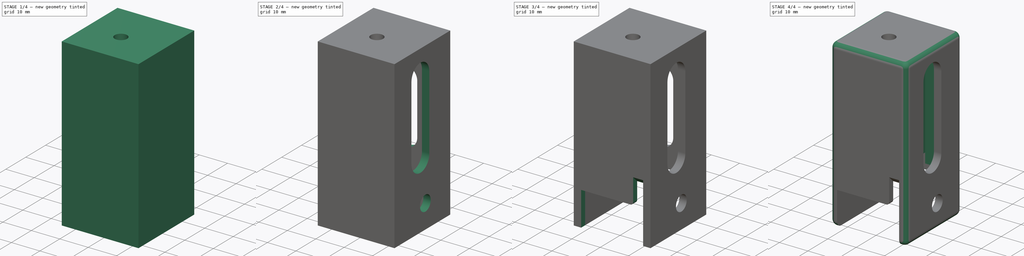
[diagram: build sequence overview — one tinted view per stage of 4, left to right]
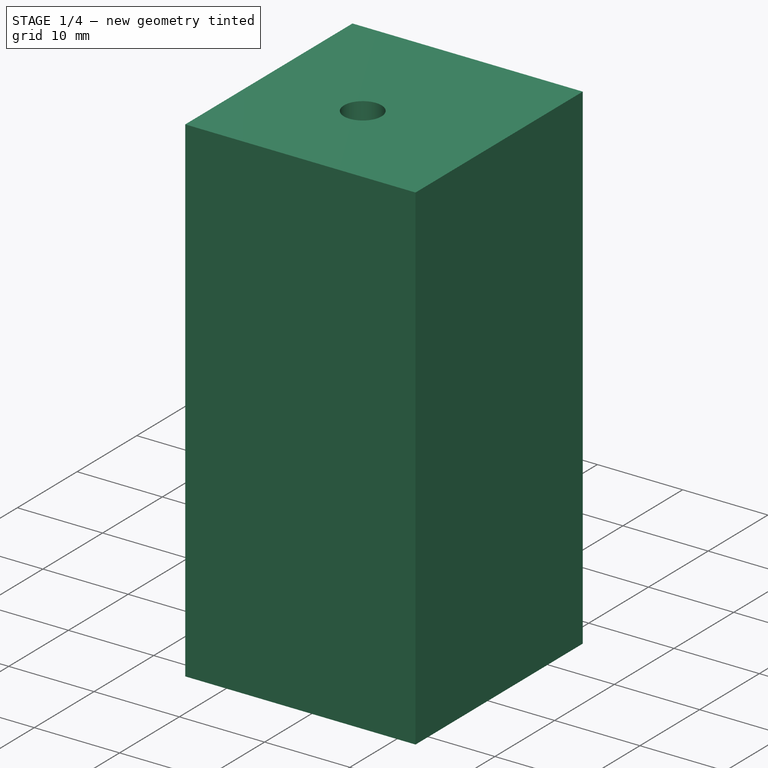
[diagram: stage 1 of 4 — iso view after this stage's code; geometry added in this stage tinted green]
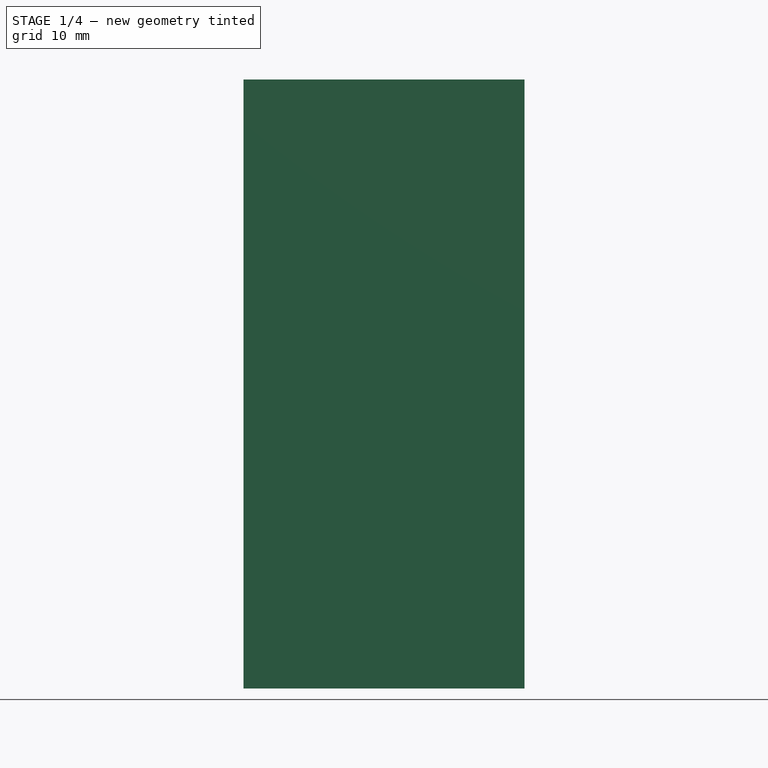
[diagram: stage 1 of 4 — front view after this stage's code; geometry added in this stage tinted green]
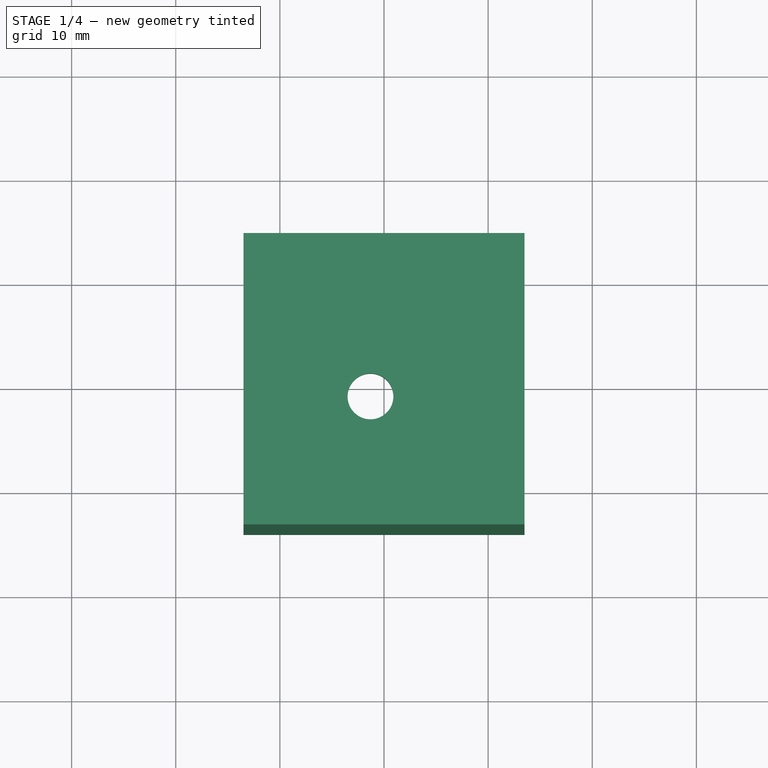
[diagram: stage 1 of 4 — top view after this stage's code; geometry added in this stage tinted green]
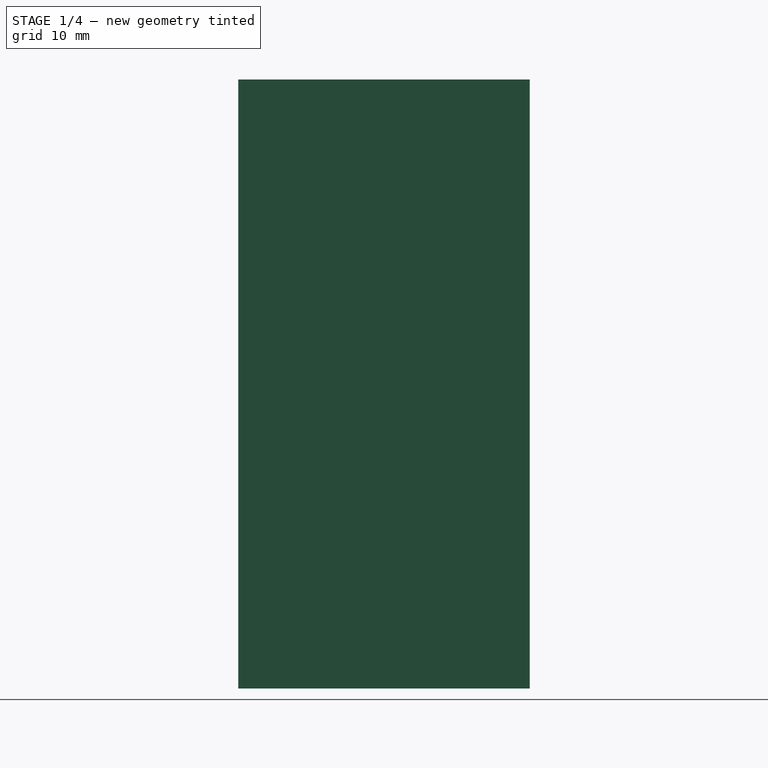
[diagram: stage 1 of 4 — right view after this stage's code; geometry added in this stage tinted green]
FCSTD DOCUMENT  (FreeCAD 0.19R24267 +148 (Git))
Label: belt_tensioner
License: All rights reserved
LicenseURL: http://en.wikipedia.org/wiki/All_rights_reserved
objects: Sketcher::SketchObject×8, PartDesign::Pocket×6, PartDesign::Fillet×3, PartDesign::Pad×2, PartDesign::Chamfer×1, PartDesign::Body×1
note: 33 computed .brp shape members not serialized (recipe doc carries the construction recipe); baked Part::Feature solids carry a one-line shape summary decoded from their .brp

FEATURE [Sketcher::SketchObject] Sketch
  FullyConstrained = true
  MapMode = 5
  Support = -> [XY_Plane]
  sketch-geometry (4):
    g0: LineSegment StartX=-13.5 StartY=14 StartZ=0 EndX=13.5 EndY=14 EndZ=0
    g1: LineSegment StartX=13.5 StartY=14 StartZ=0 EndX=13.5 EndY=-14 EndZ=0
    g2: LineSegment StartX=13.5 StartY=-14 StartZ=0 EndX=-13.5 EndY=-14 EndZ=0
    g3: LineSegment StartX=-13.5 StartY=-14 StartZ=0 EndX=-13.5 EndY=14 EndZ=0
  constraints (12):
    c: Coincident(g0,g1)
    c: Coincident(g1,g2)
    c: Coincident(g2,g3)
    c: Coincident(g3,g0)
    c: Horizontal(g0)
    c: Horizontal(g2)
    c: Vertical(g1)
    c: Vertical(g3)
    c: DistanceY(g1,g1) = 28
    c: DistanceX(g0,g0) = 27
    c: DistanceY(g-1,g0) = 14
    c: DistanceX(g0,g-1) = 13.5
FEATURE [PartDesign::Pad] Pad
  Direction = (1,1,1)
  Length = 58.5
  Length2 = 100
  Profile = -> Sketch
  Type = 0
FEATURE [Sketcher::SketchObject] Sketch001
  ExternalGeometry = -> [Pad]
  FullyConstrained = true
  MapMode = 5
  Placement = pos=(0,0,58.5) rot=(0,0,1;0rad)
  Support = -> [Pad]
  sketch-geometry (1):
    g0: Circle CenterX=-1.3 CenterY=-1.7 CenterZ=0 NormalX=0 NormalY=0 NormalZ=1 AngleXU=0 Radius=2.2
  constraints (3):
    c: Radius(g0) = 2.2
    c: DistanceX(g-3,g0) = 12.2
    c: DistanceY(g-3,g0) = 12.3
FEATURE [PartDesign::Pocket] Pocket
  BaseFeature = -> Pad
  Length = 0
  Length2 = 100
  Profile = -> Sketch001
  Type = 3
  UpToFace = -> Pad [Face5]
FEATURE [Sketcher::SketchObject] Sketch002
  ExternalGeometry = -> [Sketch]
  FullyConstrained = true
  MapMode = 5
  Placement = pos=(0,0,0) rot=(1,0,0;3.14159rad)
  Support = -> [Pocket]
  sketch-geometry (4):
    g0: LineSegment StartX=-10.9 StartY=12 StartZ=0 EndX=10.9 EndY=12 EndZ=0
    g1: LineSegment StartX=10.9 StartY=12 StartZ=0 EndX=10.9 EndY=-12 EndZ=0
    g2: LineSegment StartX=10.9 StartY=-12 StartZ=0 EndX=-10.9 EndY=-12 EndZ=0
    g3: LineSegment StartX=-10.9 StartY=-12 StartZ=0 EndX=-10.9 EndY=12 EndZ=0
  constraints (12):
    c: Coincident(g0,g1)
    c: Coincident(g1,g2)
    c: Coincident(g2,g3)
    c: Coincident(g3,g0)
    c: Horizontal(g0)
    c: Horizontal(g2)
    c: Vertical(g1)
    c: Vertical(g3)
    c: DistanceY(g0,g-3) = 2
    c: DistanceX(g-3,g0) = 2.6
    c: DistanceX(g0,g-4) = 2.6
    c: DistanceY(g-6,g2) = 2
FEATURE [PartDesign::Pocket] Pocket001
  BaseFeature = -> Pocket
  Length = 56
  Length2 = 100
  Profile = -> Sketch002
  Type = 0
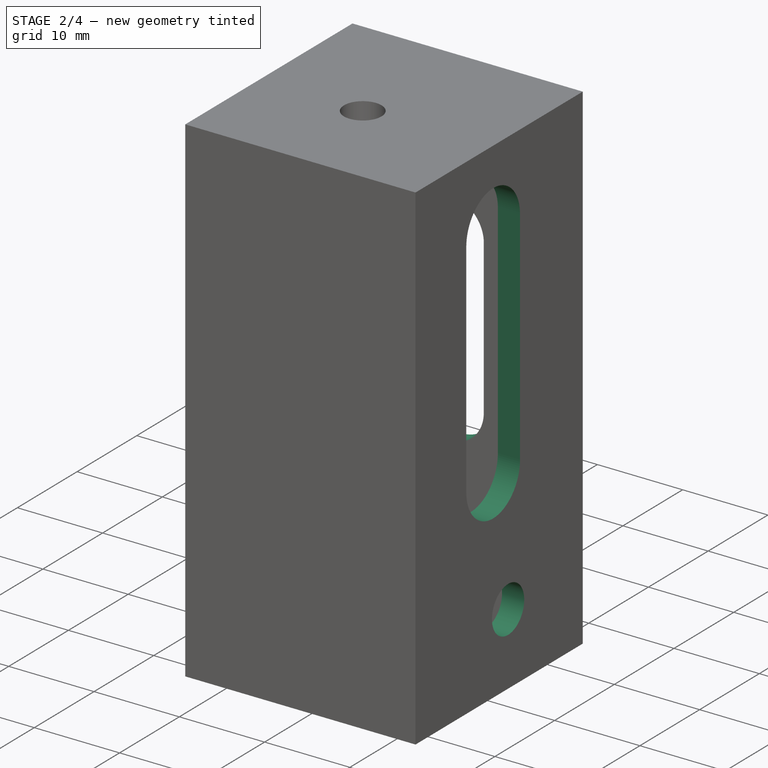
[diagram: stage 2 of 4 — iso view after this stage's code; geometry added in this stage tinted green]
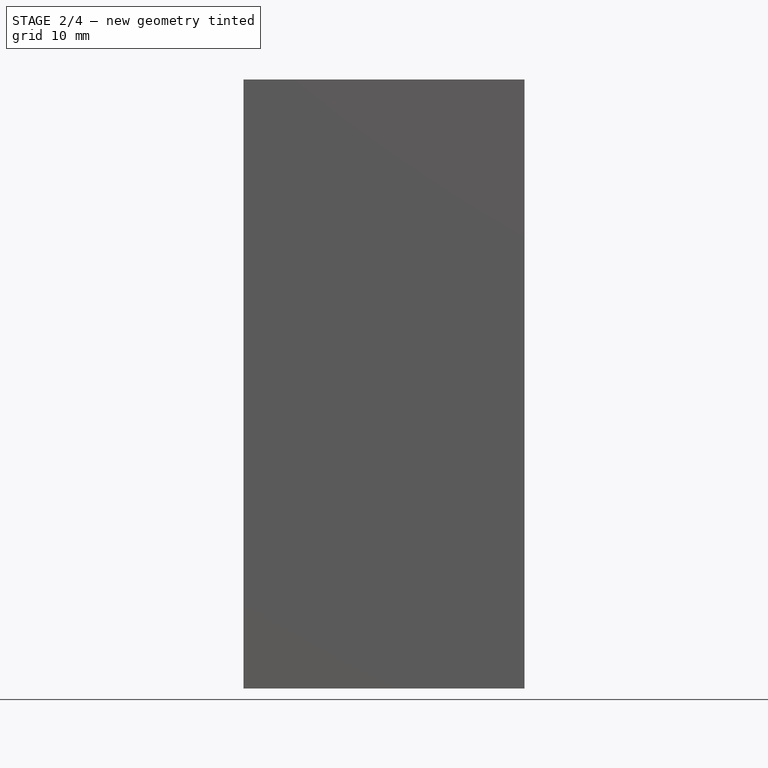
[diagram: stage 2 of 4 — front view after this stage's code; geometry added in this stage tinted green]
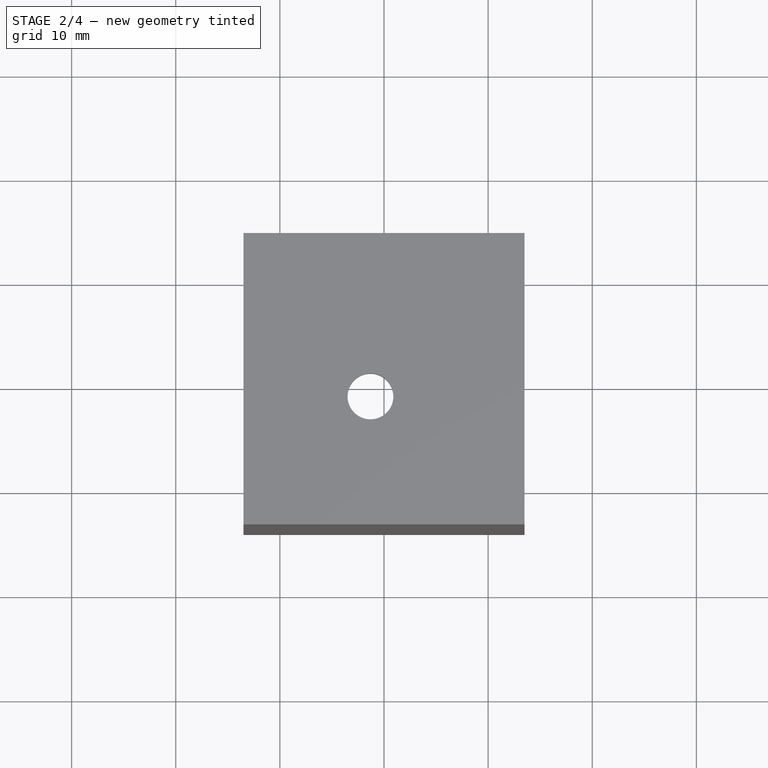
[diagram: stage 2 of 4 — top view after this stage's code; geometry added in this stage tinted green]
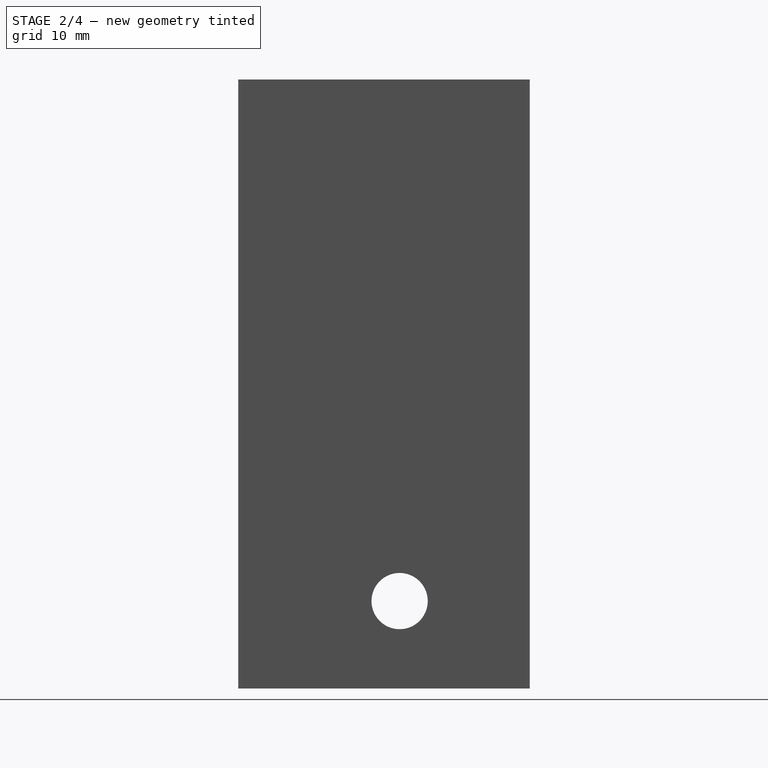
[diagram: stage 2 of 4 — right view after this stage's code; geometry added in this stage tinted green]
FEATURE [Sketcher::SketchObject] Sketch003
  ExternalGeometry = -> [Pocket001]
  FullyConstrained = true
  MapMode = 5
  Placement = pos=(13.5,0,0) rot=(0.57735,0.57735,0.57735;2.0944rad)
  Support = -> [Pocket001]
  sketch-geometry (4):
    g0: ArcOfCircle CenterX=-1 CenterY=23.5 CenterZ=0 NormalX=0 NormalY=0 NormalZ=1 AngleXU=0 Radius=4.5 StartAngle=3.14159 EndAngle=6.28319
    g1: ArcOfCircle CenterX=-1 CenterY=49.5 CenterZ=0 NormalX=0 NormalY=0 NormalZ=1 AngleXU=0 Radius=4.5 StartAngle=-5.3e-15 EndAngle=3.14159
    g2: LineSegment StartX=3.5 StartY=23.5 StartZ=0 EndX=3.5 EndY=49.5 EndZ=0
    g3: LineSegment StartX=-5.5 StartY=23.5 StartZ=0 EndX=-5.5 EndY=49.5 EndZ=0
  constraints (10):
    c: Tangent(g0,g3) = 1.5708
    c: Tangent(g0,g2) = -1.5708
    c: Tangent(g2,g1) = -1.5708
    c: Tangent(g3,g1) = 1.5708
    c: Vertical(g2)
    c: Equal(g0,g1)
    c: Radius(g1) = 4.5
    c: DistanceY(g2,g2) = 26
    c: DistanceY(g1,g-3) = 9
    c: DistanceX(g1,g-3) = 10.5
FEATURE [PartDesign::Pocket] Pocket002
  BaseFeature = -> Pocket001
  Length = 3
  Length2 = 100
  Profile = -> Sketch003
  Type = 0
FEATURE [Sketcher::SketchObject] Sketch004
  ExternalGeometry = -> [Pocket002]
  FullyConstrained = true
  MapMode = 5
  Placement = pos=(13.5,0,0) rot=(0.57735,0.57735,0.57735;2.0944rad)
  Support = -> [Pocket002]
  sketch-geometry (1):
    g0: Circle CenterX=1.5 CenterY=8.4 CenterZ=0 NormalX=0 NormalY=0 NormalZ=1 AngleXU=0 Radius=2.7
  constraints (4):
    c: DistanceX(g-1,g-3) = -1
    c: DistanceX(g-1,g0) = 1.5
    c: Radius(g0) = 2.7
    c: DistanceY(g-1,g0) = 8.4
FEATURE [PartDesign::Pocket] Pocket003
  BaseFeature = -> Pocket002
  Length = 28
  Length2 = 100
  Profile = -> Sketch004
  Type = 0
FEATURE [Sketcher::SketchObject] Sketch005
  ExternalGeometry = -> [Pocket003]
  FullyConstrained = true
  MapMode = 5
  Placement = pos=(0,14,0) rot=(0,0.707107,0.707107;3.14159rad)
  Support = -> [Pocket003]
  sketch-geometry (4):
    g0: ArcOfCircle CenterX=0.7 CenterY=40.5 CenterZ=0 NormalX=0 NormalY=0 NormalZ=1 AngleXU=0 Radius=4 StartAngle=0 EndAngle=3.14159
    g1: ArcOfCircle CenterX=0.7 CenterY=22.5 CenterZ=0 NormalX=0 NormalY=0 NormalZ=1 AngleXU=0 Radius=4 StartAngle=3.14159 EndAngle=6.28319
    g2: LineSegment StartX=-3.3 StartY=40.5 StartZ=0 EndX=-3.3 EndY=22.5 EndZ=0
    g3: LineSegment StartX=4.7 StartY=40.5 StartZ=0 EndX=4.7 EndY=22.5 EndZ=0
  constraints (10):
    c: Tangent(g0,g3) = 1.5708
    c: Tangent(g0,g2) = -1.5708
    c: Tangent(g2,g1) = -1.5708
    c: Tangent(g3,g1) = 1.5708
    c: Vertical(g2)
    c: Equal(g0,g1)
    c: Radius(g0) = 4
    c: DistanceY(g3,g3) = 18
    c: DistanceY(g0,g-3) = 18
    c: DistanceX(g0,g-4) = 12.8
FEATURE [PartDesign::Pocket] Pocket004
  BaseFeature = -> Pocket003
  Length = 5
  Length2 = 100
  Profile = -> Sketch005
  Type = 0
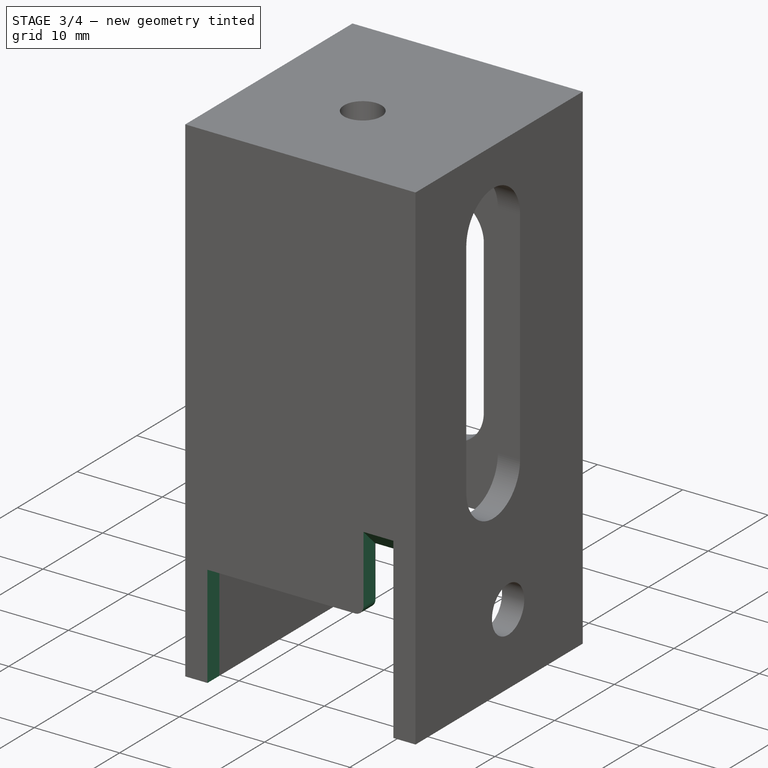
[diagram: stage 3 of 4 — iso view after this stage's code; geometry added in this stage tinted green]
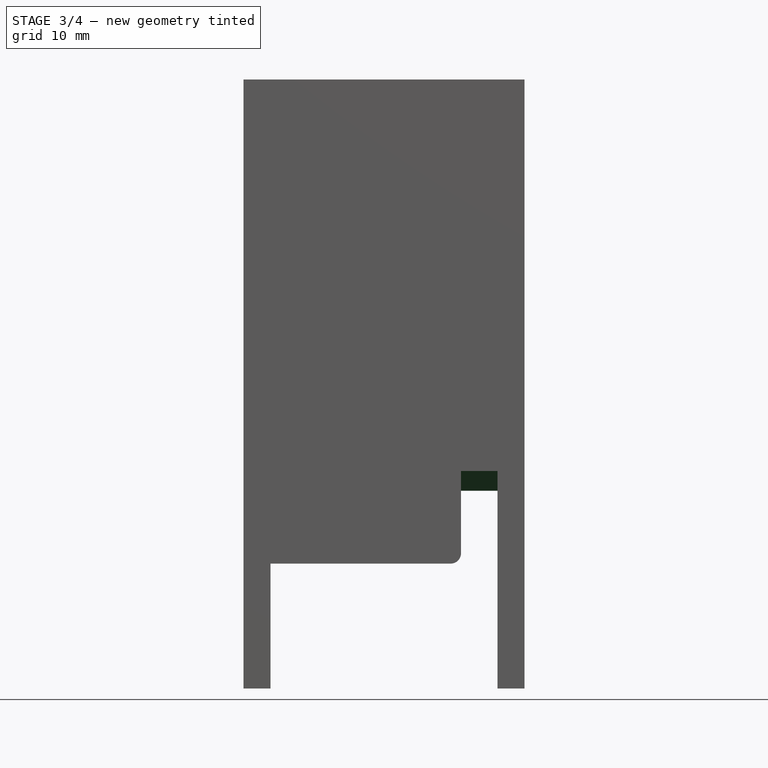
[diagram: stage 3 of 4 — front view after this stage's code; geometry added in this stage tinted green]
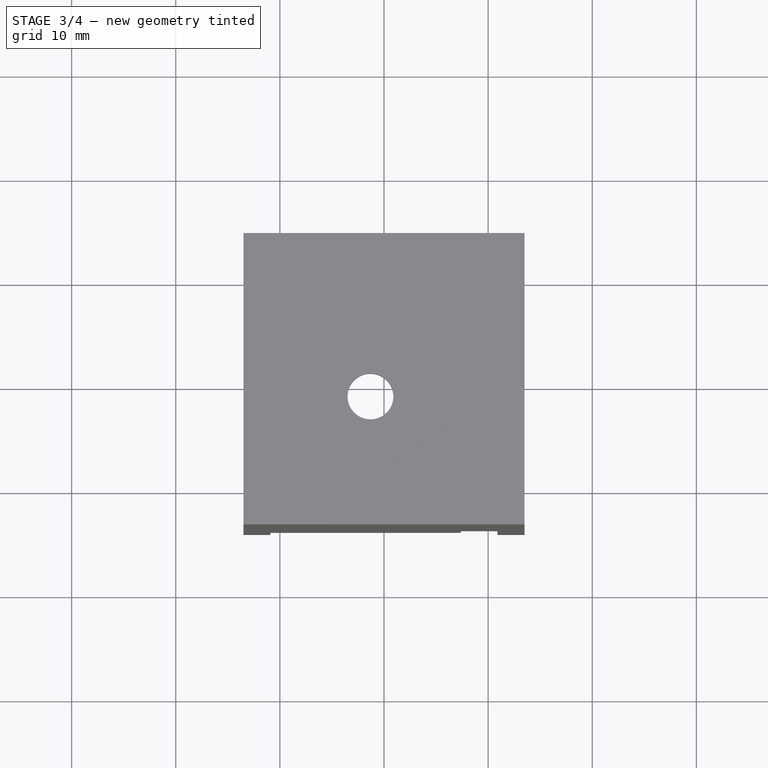
[diagram: stage 3 of 4 — top view after this stage's code; geometry added in this stage tinted green]
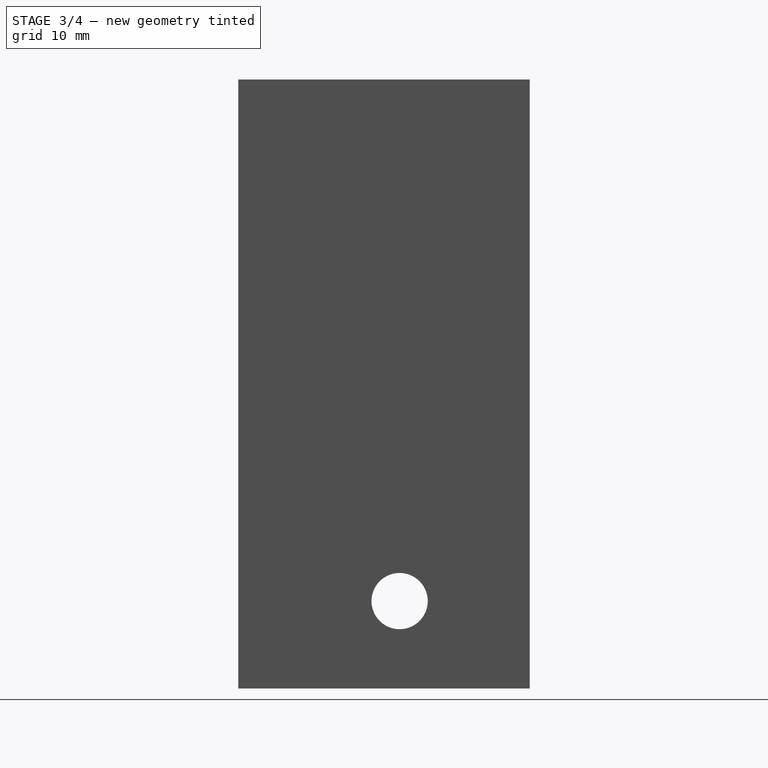
[diagram: stage 3 of 4 — right view after this stage's code; geometry added in this stage tinted green]
FEATURE [Sketcher::SketchObject] Sketch006
  ExternalGeometry = -> [Pocket004]
  FullyConstrained = true
  MapMode = 5
  Placement = pos=(0,14,0) rot=(0,0.707107,0.707107;3.14159rad)
  Support = -> [Pocket004]
  sketch-geometry (6):
    g0: LineSegment StartX=-10.9 StartY=0 StartZ=0 EndX=-10.9 EndY=19 EndZ=0
    g1: LineSegment StartX=-10.9 StartY=19 StartZ=0 EndX=-7.4 EndY=19 EndZ=0
    g2: LineSegment StartX=-7.4 StartY=19 StartZ=0 EndX=-7.4 EndY=12 EndZ=0
    g3: LineSegment StartX=-7.4 StartY=12 StartZ=0 EndX=10.9 EndY=12 EndZ=0
    g4: LineSegment StartX=10.9 StartY=12 StartZ=0 EndX=10.9 EndY=0 EndZ=0
    g5: LineSegment StartX=10.9 StartY=0 StartZ=0 EndX=-10.9 EndY=0 EndZ=0
  constraints (18):
    c: PointOnObject(g0,g-1)
    c: Vertical(g0)
    c: Coincident(g0,g1)
    c: Coincident(g1,g2)
    c: Vertical(g2)
    c: Coincident(g2,g3)
    c: Horizontal(g3)
    c: Coincident(g3,g4)
    c: Coincident(g4,g5)
    c: Horizontal(g5)
    c: Coincident(g5,g0)
    c: Vertical(g4)
    c: Horizontal(g1)
    c: DistanceY(g4,g4) = 12
    c: DistanceY(g2,g2) = 7
    c: DistanceX(g1,g1) = 3.5
    c: DistanceX(g-3,g0) = 2.6
    c: DistanceX(g4,g-4) = 2.6
FEATURE [PartDesign::Pocket] Pocket005
  BaseFeature = -> Pocket004
  Length = 30
  Length2 = 100
  Profile = -> Sketch006
  Type = 0
FEATURE [PartDesign::Chamfer] Chamfer
  Angle = 45
  Base = -> Pocket005 [Edge5,Edge55]
  BaseFeature = -> Pocket005
  ChamferType = 2
  FlipDirection = false
  Size = 1.9
  Size2 = 1
  SupportTransform = false
FEATURE [PartDesign::Fillet] Fillet
  Base = -> Chamfer [Edge29,Edge99]
  BaseFeature = -> Chamfer
  Radius = 1
  SupportTransform = false
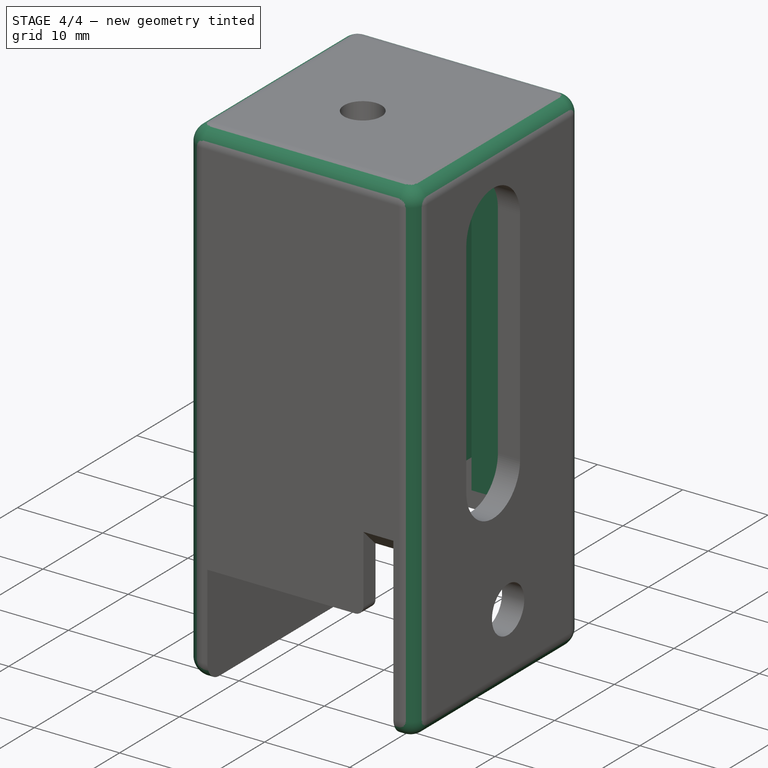
[diagram: stage 4 of 4 — iso view after this stage's code; geometry added in this stage tinted green]
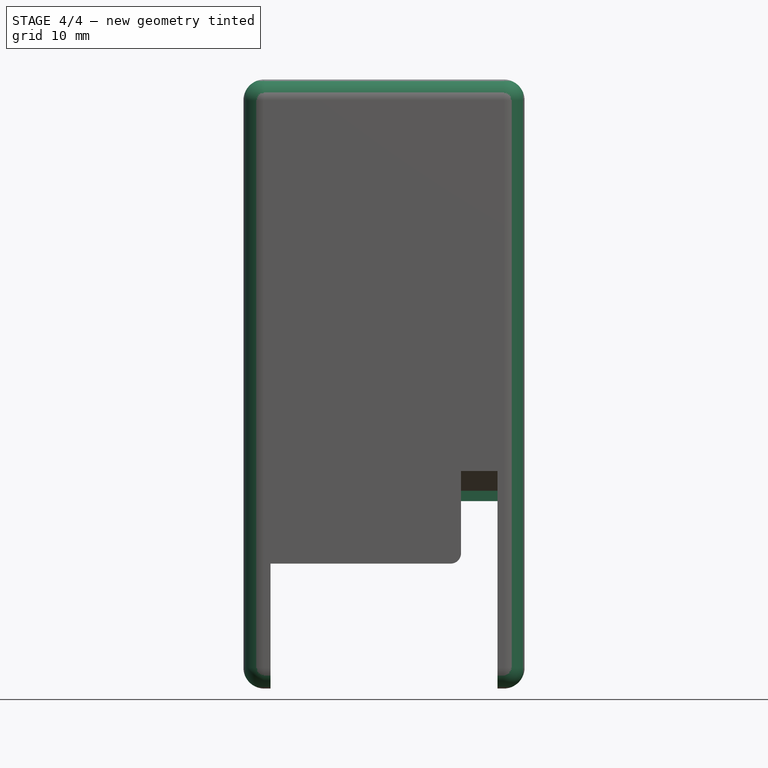
[diagram: stage 4 of 4 — front view after this stage's code; geometry added in this stage tinted green]
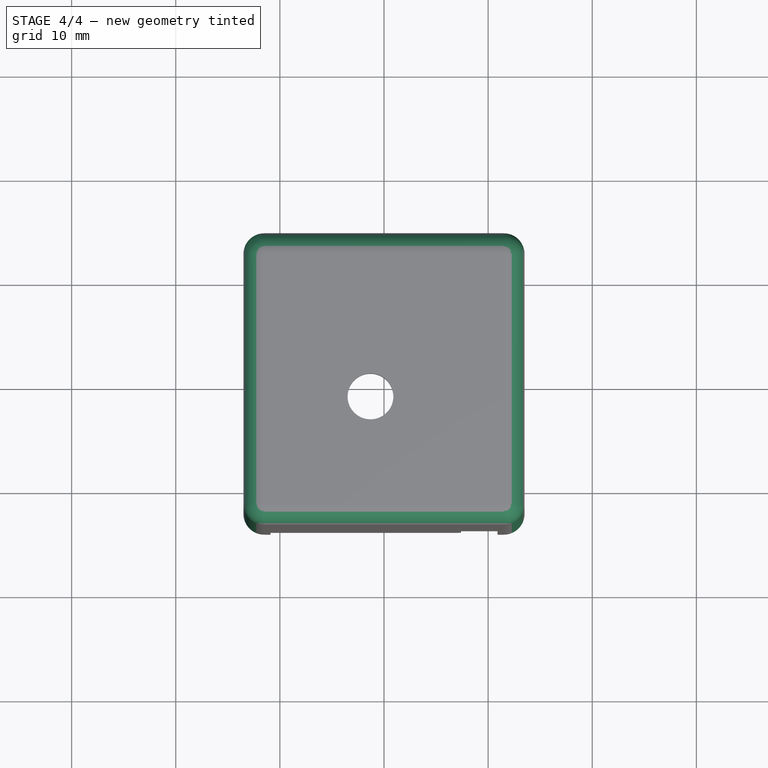
[diagram: stage 4 of 4 — top view after this stage's code; geometry added in this stage tinted green]
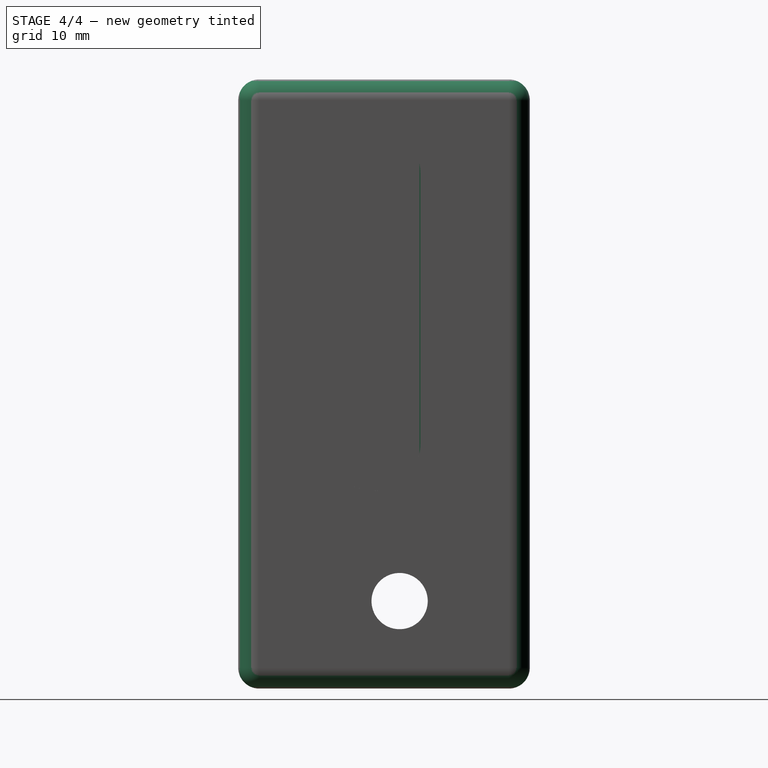
[diagram: stage 4 of 4 — right view after this stage's code; geometry added in this stage tinted green]
FEATURE [PartDesign::Fillet] Fillet001
  Base = -> Fillet [Edge11,Edge8,Edge34,Edge42]
  BaseFeature = -> Fillet
  Radius = 2
  SupportTransform = false
FEATURE [PartDesign::Fillet] Fillet002
  Base = -> Fillet001 [Edge25,Edge33,Edge6,Edge27,Edge32,Edge8,Edge4,Edge40]
  BaseFeature = -> Fillet001
  Radius = 2
  SupportTransform = false
FEATURE [Sketcher::SketchObject] Sketch008
  ExternalGeometry = -> [Fillet002]
  FullyConstrained = false
  MapMode = 5
  Placement = pos=(0,0,56) rot=(1,0,0;3.14159rad)
  Support = -> [Fillet002]
  sketch-geometry (49):
    g0: LineSegment StartX=-8.32648 StartY=12 StartZ=0 EndX=-7.08387 EndY=12 EndZ=0
    g1: LineSegment StartX=-7.08387 StartY=12 StartZ=0 EndX=-7.08387 EndY=11.5 EndZ=0
    g2: LineSegment StartX=-7.08387 StartY=11.5 StartZ=0 EndX=-8.32648 EndY=11.5 EndZ=0
    g3: LineSegment StartX=-8.32648 StartY=11.5 StartZ=0 EndX=-8.32648 EndY=12 EndZ=0
    g4: LineSegment StartX=3.10557 StartY=12 StartZ=0 EndX=4.59671 EndY=12 EndZ=0
    g5: LineSegment StartX=4.59671 StartY=12 StartZ=0 EndX=4.59671 EndY=11.5 EndZ=0
    g6: LineSegment StartX=4.59671 StartY=11.5 StartZ=0 EndX=3.10557 EndY=11.5 EndZ=0
    g7: LineSegment StartX=3.10557 StartY=11.5 StartZ=0 EndX=3.10557 EndY=12 EndZ=0
    g8: LineSegment StartX=10.8595 StartY=7.3 StartZ=0 EndX=5.85949 EndY=7.3 EndZ=0
    g9: LineSegment StartX=5.85949 StartY=7.3 StartZ=0 EndX=5.85949 EndY=4.8 EndZ=0
    g10: LineSegment StartX=5.85949 StartY=4.8 StartZ=0 EndX=10.8595 EndY=4.8 EndZ=0
    g11: LineSegment StartX=10.8595 StartY=4.8 StartZ=0 EndX=10.8595 EndY=7.3 EndZ=0
    g12: LineSegment StartX=10.9 StartY=-4.8 StartZ=0 EndX=6.9 EndY=-4.8 EndZ=0
    g13: LineSegment StartX=6.9 StartY=-4.8 StartZ=0 EndX=6.9 EndY=-7.3 EndZ=0
    g14: LineSegment StartX=6.9 StartY=-7.3 StartZ=0 EndX=10.9 EndY=-7.3 EndZ=0
    g15: LineSegment StartX=10.9 StartY=-7.3 StartZ=0 EndX=10.9 EndY=-4.8 EndZ=0
    g16: LineSegment StartX=-10.9 StartY=6.9249 StartZ=0 EndX=-9.9 EndY=6.9249 EndZ=0
    g17: LineSegment StartX=-9.9 StartY=6.9249 StartZ=0 EndX=-9.9 EndY=5.9249 EndZ=0
    g18: LineSegment StartX=-9.9 StartY=5.9249 StartZ=0 EndX=-10.9 EndY=5.9249 EndZ=0
    g19: LineSegment StartX=-10.9 StartY=5.9249 StartZ=0 EndX=-10.9 EndY=6.9249 EndZ=0
    g20: LineSegment StartX=-10.9 StartY=-3.39265 StartZ=0 EndX=-9.9 EndY=-3.39265 EndZ=0
    g21: LineSegment StartX=-9.9 StartY=-3.39265 StartZ=0 EndX=-9.9 EndY=-4.39265 EndZ=0
    g22: LineSegment StartX=-9.9 StartY=-4.39265 StartZ=0 EndX=-10.9 EndY=-4.39265 EndZ=0
    g23: LineSegment StartX=-10.9 StartY=-4.39265 StartZ=0 EndX=-10.9 EndY=-3.39265 EndZ=0
    g24: LineSegment StartX=-9.49525 StartY=-12 StartZ=0 EndX=-8.49525 EndY=-12 EndZ=0
    g25: LineSegment StartX=-8.49525 StartY=-12 StartZ=0 EndX=-8.49525 EndY=-7 EndZ=0
    g26: LineSegment StartX=-8.49525 StartY=-7 StartZ=0 EndX=-9.49525 EndY=-7 EndZ=0
    g27: LineSegment StartX=-9.49525 StartY=-7 StartZ=0 EndX=-9.49525 EndY=-12 EndZ=0
    g28: LineSegment StartX=4.41309 StartY=-12 StartZ=0 EndX=5.55465 EndY=-12 EndZ=0
    g29: LineSegment StartX=5.55465 StartY=-12 StartZ=0 EndX=5.55465 EndY=-8.5 EndZ=0
    g30: LineSegment StartX=5.55465 StartY=-8.5 StartZ=0 EndX=4.41309 EndY=-8.5 EndZ=0
    g31: LineSegment StartX=4.41309 StartY=-8.5 StartZ=0 EndX=4.41309 EndY=-12 EndZ=0
    g32: LineSegment StartX=-6.10445 StartY=-12 StartZ=0 EndX=-5.10445 EndY=-12 EndZ=0
    g33: LineSegment StartX=-5.10445 StartY=-12 StartZ=0 EndX=-5.10445 EndY=-8.5 EndZ=0
    g34: LineSegment StartX=-5.10445 StartY=-8.5 StartZ=0 EndX=-6.10445 EndY=-8.5 EndZ=0
    g35: LineSegment StartX=-6.10445 StartY=-8.5 StartZ=0 EndX=-6.10445 EndY=-12 EndZ=0
    g36: LineSegment StartX=0.584961 StartY=-12 StartZ=0 EndX=1.58496 EndY=-12 EndZ=0
    g37: LineSegment StartX=-6.87745 StartY=-7.5 StartZ=0 EndX=-4.2536 EndY=-7.5 EndZ=0
    g38: LineSegment StartX=-4.2536 StartY=-7.5 StartZ=0 EndX=-4.2536 EndY=-8.5 EndZ=0
    g39: LineSegment StartX=-4.2536 StartY=-8.5 StartZ=0 EndX=-6.87745 EndY=-8.5 EndZ=0
    g40: LineSegment StartX=-6.87745 StartY=-8.5 StartZ=0 EndX=-6.87745 EndY=-7.5 EndZ=0
    g41: LineSegment StartX=1.60928 StartY=-12 StartZ=0 EndX=2.60928 EndY=-12 EndZ=0
    g42: LineSegment StartX=2.60928 StartY=-12 StartZ=0 EndX=2.60928 EndY=-8.5 EndZ=0
    g43: LineSegment StartX=2.60928 StartY=-8.5 StartZ=0 EndX=1.60928 EndY=-8.5 EndZ=0
    g44: LineSegment StartX=1.60928 StartY=-8.5 StartZ=0 EndX=1.60928 EndY=-12 EndZ=0
    g45: LineSegment StartX=0.816554 StartY=-7.5 StartZ=0 EndX=3.55878 EndY=-7.5 EndZ=0
    g46: LineSegment StartX=3.55878 StartY=-7.5 StartZ=0 EndX=3.55878 EndY=-8.5 EndZ=0
    g47: LineSegment StartX=3.55878 StartY=-8.5 StartZ=0 EndX=0.816554 EndY=-8.5 EndZ=0
    g48: LineSegment StartX=0.816554 StartY=-8.5 StartZ=0 EndX=0.816554 EndY=-7.5 EndZ=0
  constraints (130):
    c: Coincident(g0,g1)
    c: Coincident(g1,g2)
    c: Coincident(g2,g3)
    c: Coincident(g3,g0)
    c: Horizontal(g0)
    c: Horizontal(g2)
    c: Vertical(g1)
    c: Vertical(g3)
    c: Coincident(g4,g5)
    c: Coincident(g5,g6)
    c: Coincident(g6,g7)
    c: Coincident(g7,g4)
    c: Horizontal(g4)
    c: Horizontal(g6)
    c: Vertical(g5)
    c: Vertical(g7)
    c: Coincident(g8,g9)
    c: Coincident(g9,g10)
    c: Coincident(g10,g11)
    c: Coincident(g11,g8)
    c: Horizontal(g8)
    c: Horizontal(g10)
    c: Vertical(g9)
    c: Vertical(g11)
    c: Coincident(g12,g13)
    c: Coincident(g13,g14)
    c: Coincident(g14,g15)
    c: Coincident(g15,g12)
    c: Horizontal(g12)
    c: Horizontal(g14)
    c: Vertical(g13)
    c: Vertical(g15)
    c: Coincident(g16,g17)
    c: Coincident(g17,g18)
    c: Coincident(g18,g19)
    c: Coincident(g19,g16)
    c: Horizontal(g16)
    c: Horizontal(g18)
    c: Vertical(g17)
    c: Vertical(g19)
    c: Coincident(g20,g21)
    c: Coincident(g21,g22)
    c: Coincident(g22,g23)
    c: Coincident(g23,g20)
    c: Horizontal(g20)
    c: Horizontal(g22)
    c: Vertical(g21)
    c: Vertical(g23)
    c: DistanceX(g-3,g16) = 0
    c: DistanceX(g-3,g20) = 0
    c: DistanceX(g8,g8) = 5
    c: DistanceX(g12,g12) = 4
    c: DistanceY(g9,g9) = 2.5
    c: DistanceY(g13,g13) = 2.5
    c: DistanceY(g8,g-4) = 4.7
    c: DistanceY(g-5,g13) = 4.7
    c: DistanceX(g16,g16) = 1
    c: DistanceX(g20,g20) = 1
    c: DistanceY(g17,g17) = 1
    c: DistanceY(g21,g21) = 1
    c: DistanceY(g3,g3) = 0.5
    c: DistanceY(g7,g7) = 0.5
    c: DistanceY(g4,g-4) = 0
    c: DistanceY(g0,g4) = 0
    c: DistanceX(g-5,g14) = 0
    c: Coincident(g24,g25)
    c: Coincident(g25,g26)
    c: Coincident(g26,g27)
    c: Coincident(g27,g24)
    c: Horizontal(g24)
    c: Horizontal(g26)
    c: Vertical(g25)
    c: Vertical(g27)
    c: Coincident(g28,g29)
    c: Coincident(g29,g30)
    c: Coincident(g30,g31)
    c: Coincident(g31,g28)
    c: Horizontal(g28)
    c: Horizontal(g30)
    c: Vertical(g29)
    c: Vertical(g31)
    c: DistanceY(g-5,g28) = 0
    c: DistanceY(g-6,g24) = 0
    c: DistanceY(g29,g29) = 3.5
    c: DistanceY(g27,g27) = 5
    c: DistanceX(g26,g26) = 1
    c: Coincident(g32,g33)
    c: Coincident(g33,g34)
    c: Coincident(g34,g35)
    c: Coincident(g35,g32)
    c: Horizontal(g32)
    c: Horizontal(g34)
    c: Vertical(g33)
    c: Vertical(g35)
    c: DistanceY(g33,g33) = 3.5
    c: DistanceY(g-6,g32) = 0
    c: DistanceX(g34,g34) = 1
    c: Horizontal(g36)
    c: DistanceY(g-5,g36) = 0
    c: Coincident(g37,g38)
    c: Coincident(g38,g39)
    c: Coincident(g39,g40)
    c: Coincident(g40,g37)
    c: Horizontal(g37)
    c: Horizontal(g39)
    c: Vertical(g38)
    c: Vertical(g40)
    c: DistanceY(g33,g38) = 0
    c: Coincident(g41,g42)
    c: Coincident(g42,g43)
    c: Coincident(g43,g44)
    c: Coincident(g44,g41)
    c: Horizontal(g41)
    c: Horizontal(g43)
    c: Vertical(g42)
    c: Vertical(g44)
    c: Equal(g33,g42) = 3.5
    c: Equal(g34,g43) = 1
    c: Coincident(g45,g46)
    c: Coincident(g46,g47)
    c: Coincident(g47,g48)
    c: Coincident(g48,g45)
    c: Horizontal(g45)
    c: Horizontal(g47)
    c: Vertical(g46)
    c: Vertical(g48)
    c: DistanceY(g42,g46) = 0
    c: DistanceY(g-5,g41) = 0
    c: DistanceY(g38,g38) = 1
    c: DistanceY(g46,g46) = 1
FEATURE [PartDesign::Pad] Pad001
  BaseFeature = -> Fillet002
  Direction = (1,1,1)
  Length = 38
  Length2 = 100
  Profile = -> Sketch008
  Type = 0
FEATURE [PartDesign::Body] Body
  Group = -> [Sketch,Pad,Sketch001,Pocket,Sketch002,Pocket001,Sketch003,Pocket002,Sketch004,Pocket003,Sketch005,Pocket004,Sketch006,Pocket005,Chamfer,Fillet,Fillet001,Fillet002,Sketch008,Pad001]
  Origin = -> Origin
  Tip = -> Pad001
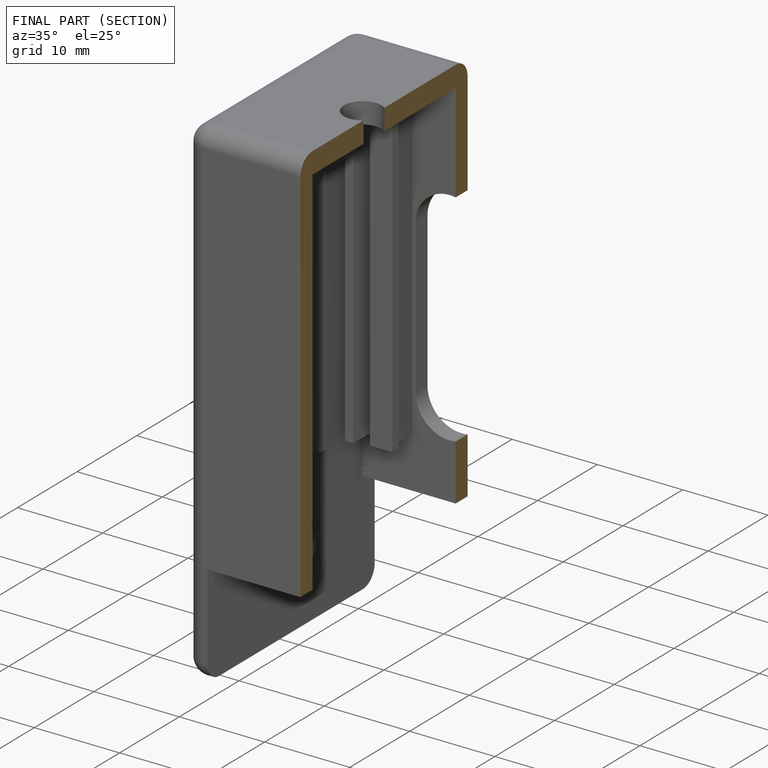
[diagram: finished part — half-section view (interior)]
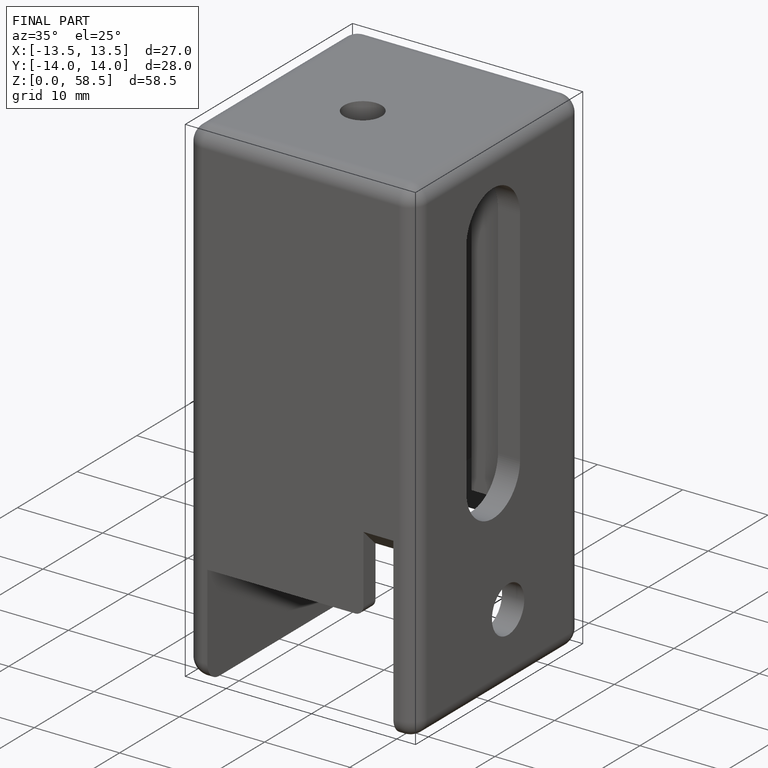
[diagram: finished part — iso view with bounding-box wireframe]
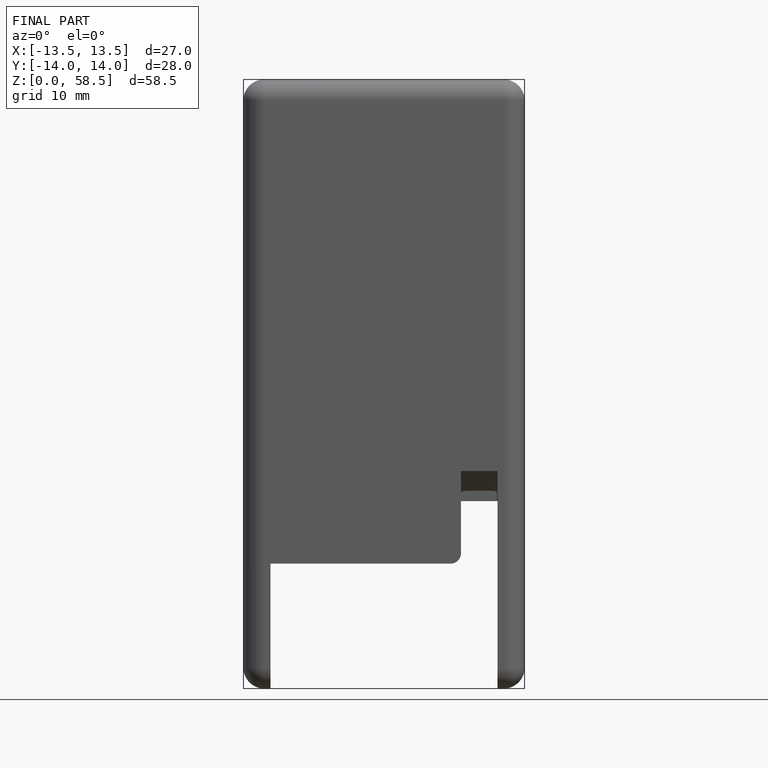
[diagram: finished part — front view with bounding-box wireframe]
